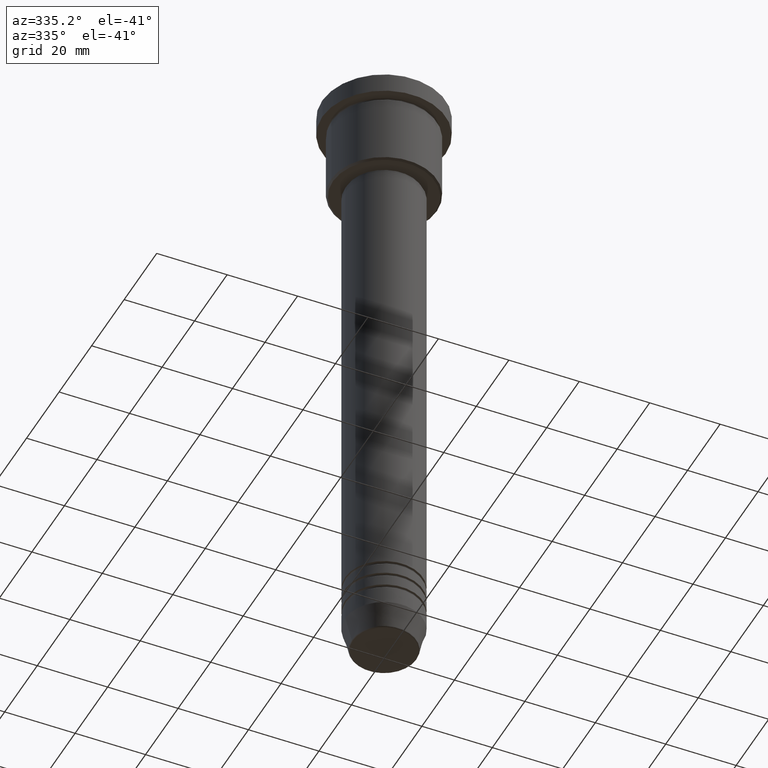
[diagram: clean part render]
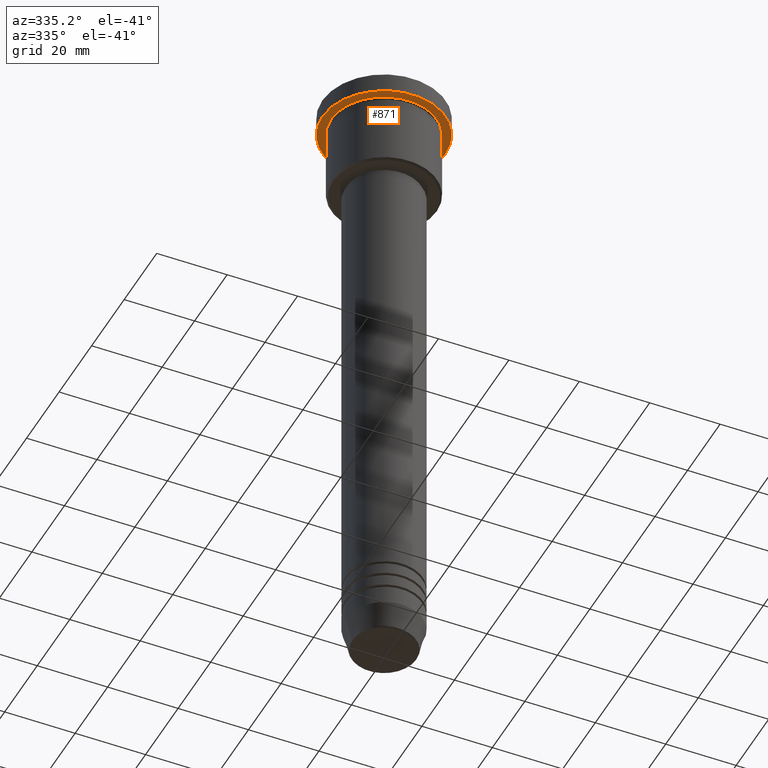
[diagram: same view with one face highlighted and labeled with its STEP entity id]
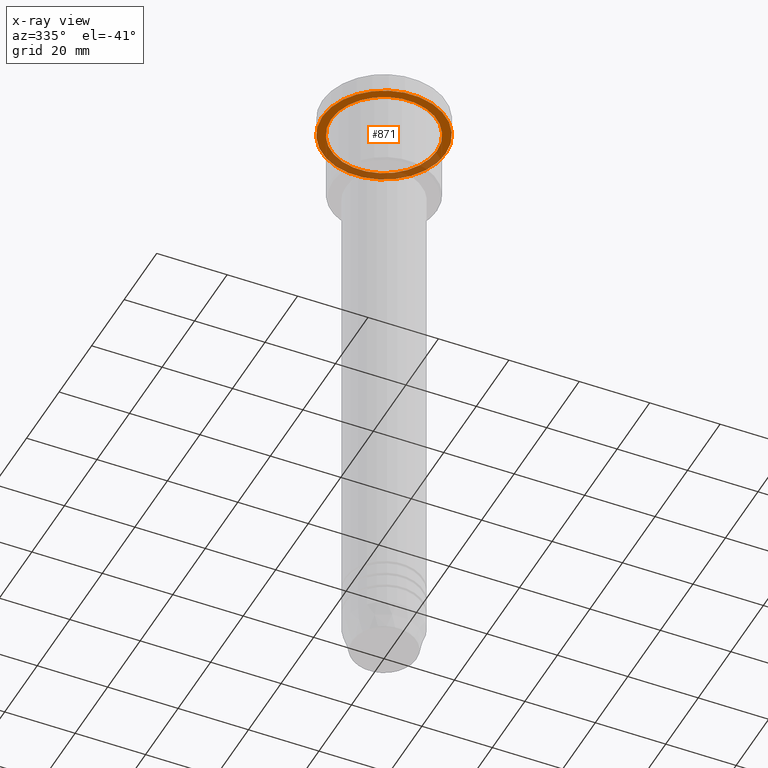
[diagram: x-ray of the same camera — body ghosted, the highlighted face saturated]
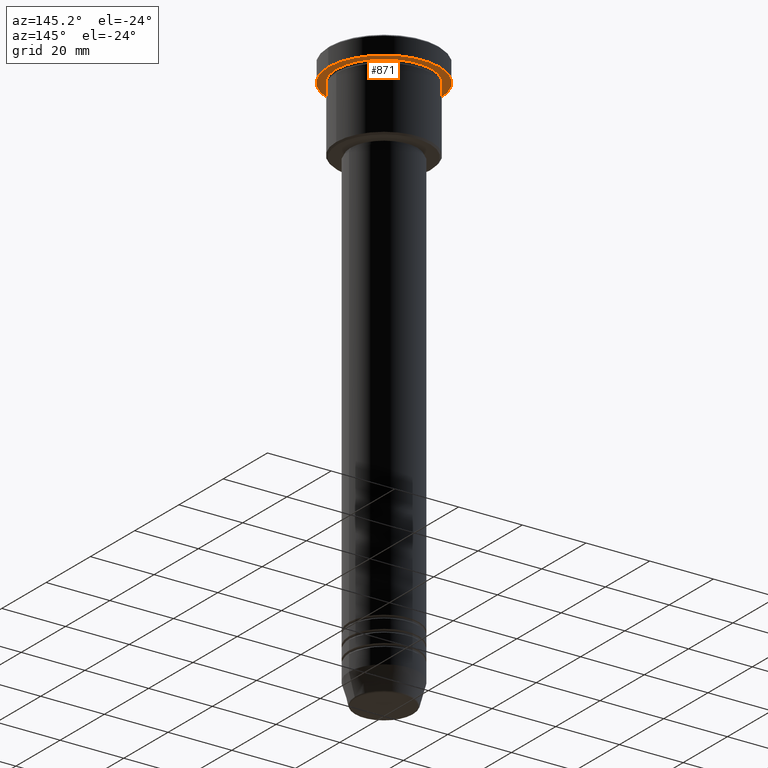
[diagram: same view with one face highlighted and labeled with its STEP entity id]
A machine part, auxiliary view. The second image highlights one B-rep face of the part: STEP entity #871.
The next image is the same camera in x-ray: the body ghosted, the highlighted face saturated — about 33% of this face is hidden behind the body in this view.
A second angle (auxiliary view) of the same face is appended — the face is thin or edge-on in the first view.
In plain terms, the highlighted planar face has unit normal (0, 0, -1).
Its self-contained STEP definition (entity closure, byte-faithful):
#16 = VERTEX_POINT ( 'NONE', #1028 ) ;
#22 = CIRCLE ( 'NONE', #898, 17.50000000000000000 ) ;
#59 = PLANE ( 'NONE',  #761 ) ;
#71 = AXIS2_PLACEMENT_3D ( 'NONE', #756, #501, #132 ) ;
#75 = EDGE_CURVE ( 'NONE', #16, #748, #22, .T. ) ;
#116 = ORIENTED_EDGE ( 'NONE', *, *, #75, .F. ) ;
#132 = DIRECTION ( 'NONE',  ( -1.000000000000000000, 0.000000000000000000, 0.000000000000000000 ) ) ;
#143 = CARTESIAN_POINT ( 'NONE',  ( -15.00000000000000000, 0.000000000000000000, -5.999999999999994671 ) ) ;
#159 = VERTEX_POINT ( 'NONE', #992 ) ;
#219 = DIRECTION ( 'NONE',  ( -0.000000000000000000, -0.000000000000000000, 1.000000000000000000 ) ) ;
#232 = FACE_OUTER_BOUND ( 'NONE', #516, .T. ) ;
#281 = DIRECTION ( 'NONE',  ( -0.000000000000000000, -0.000000000000000000, 1.000000000000000000 ) ) ;
#318 = EDGE_CURVE ( 'NONE', #1125, #159, #1152, .T. ) ;
#385 = DIRECTION ( 'NONE',  ( -1.000000000000000000, 0.000000000000000000, 0.000000000000000000 ) ) ;
#413 = FACE_BOUND ( 'NONE', #706, .T. ) ;
#427 = DIRECTION ( 'NONE',  ( 0.000000000000000000, 0.000000000000000000, -1.000000000000000000 ) ) ;
#439 = CIRCLE ( 'NONE', #521, 17.50000000000000000 ) ;
#501 = DIRECTION ( 'NONE',  ( -0.000000000000000000, -0.000000000000000000, 1.000000000000000000 ) ) ;
#516 = EDGE_LOOP ( 'NONE', ( #116, #865 ) ) ;
#521 = AXIS2_PLACEMENT_3D ( 'NONE', #621, #906, #810 ) ;
#572 = CARTESIAN_POINT ( 'NONE',  ( 0.000000000000000000, 0.000000000000000000, -5.999999999999995559 ) ) ;
#621 = CARTESIAN_POINT ( 'NONE',  ( 0.000000000000000000, 0.000000000000000000, -5.999999999999995559 ) ) ;
#638 = EDGE_CURVE ( 'NONE', #748, #16, #439, .T. ) ;
#698 = CARTESIAN_POINT ( 'NONE',  ( 0.000000000000000000, 0.000000000000000000, -5.999999999999995559 ) ) ;
#706 = EDGE_LOOP ( 'NONE', ( #1144, #795 ) ) ;
#745 = AXIS2_PLACEMENT_3D ( 'NONE', #572, #281, #385 ) ;
#748 = VERTEX_POINT ( 'NONE', #1176 ) ;
#756 = CARTESIAN_POINT ( 'NONE',  ( 0.000000000000000000, 0.000000000000000000, -5.999999999999995559 ) ) ;
#761 = AXIS2_PLACEMENT_3D ( 'NONE', #1050, #427, #967 ) ;
#795 = ORIENTED_EDGE ( 'NONE', *, *, #1007, .T. ) ;
#810 = DIRECTION ( 'NONE',  ( 1.000000000000000000, 0.000000000000000000, 0.000000000000000000 ) ) ;
#865 = ORIENTED_EDGE ( 'NONE', *, *, #638, .F. ) ;
#868 = DIRECTION ( 'NONE',  ( 1.000000000000000000, 0.000000000000000000, 0.000000000000000000 ) ) ;
#871 = ADVANCED_FACE ( 'NONE', ( #413, #232 ), #59, .T. ) ;
#898 = AXIS2_PLACEMENT_3D ( 'NONE', #698, #219, #868 ) ;
#906 = DIRECTION ( 'NONE',  ( -0.000000000000000000, -0.000000000000000000, 1.000000000000000000 ) ) ;
#967 = DIRECTION ( 'NONE',  ( -1.000000000000000000, 0.000000000000000000, -0.000000000000000000 ) ) ;
#992 = CARTESIAN_POINT ( 'NONE',  ( 15.00000000000000000, 1.836970198721029589E-15, -5.999999999999994671 ) ) ;
#1007 = EDGE_CURVE ( 'NONE', #159, #1125, #1061, .T. ) ;
#1028 = CARTESIAN_POINT ( 'NONE',  ( 17.50000000000000000, 0.000000000000000000, -5.999999999999995559 ) ) ;
#1050 = CARTESIAN_POINT ( 'NONE',  ( 0.000000000000000000, 17.50000000000000000, -5.999999999999995559 ) ) ;
#1061 = CIRCLE ( 'NONE', #71, 15.00000000000000000 ) ;
#1125 = VERTEX_POINT ( 'NONE', #143 ) ;
#1144 = ORIENTED_EDGE ( 'NONE', *, *, #318, .T. ) ;
#1152 = CIRCLE ( 'NONE', #745, 15.00000000000000000 ) ;
#1176 = CARTESIAN_POINT ( 'NONE',  ( -17.50000000000000000, 2.143131898507868248E-15, -5.999999999999995559 ) ) ;